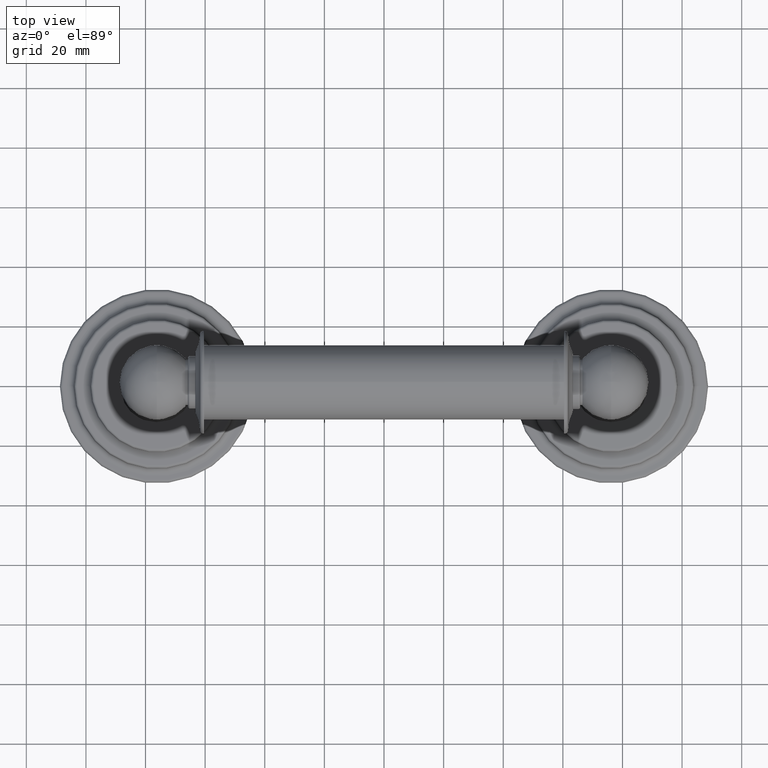
[diagram: clean part render]
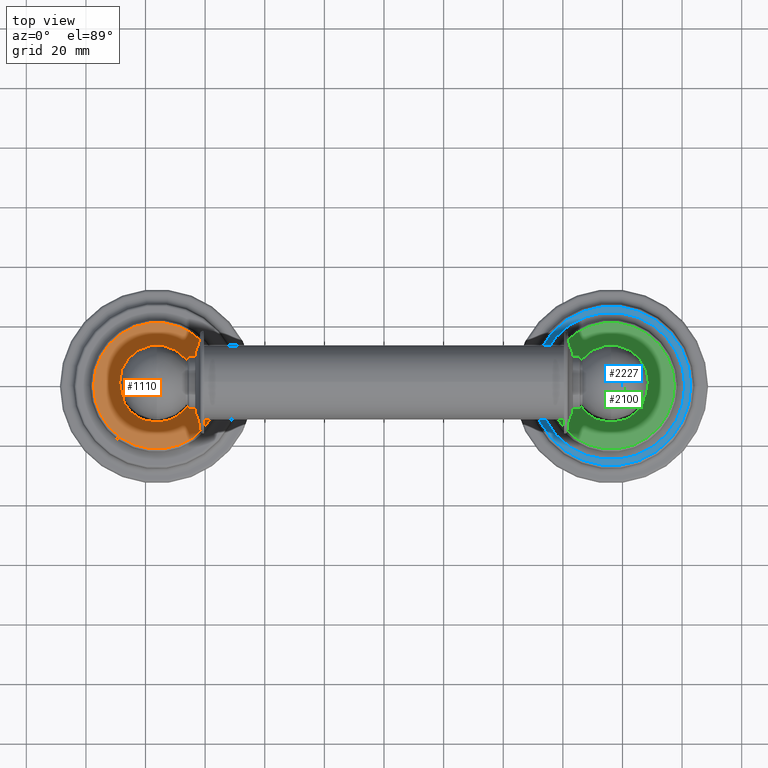
[diagram: same view with three faces highlighted in distinct colors, each labeled with its STEP entity id]
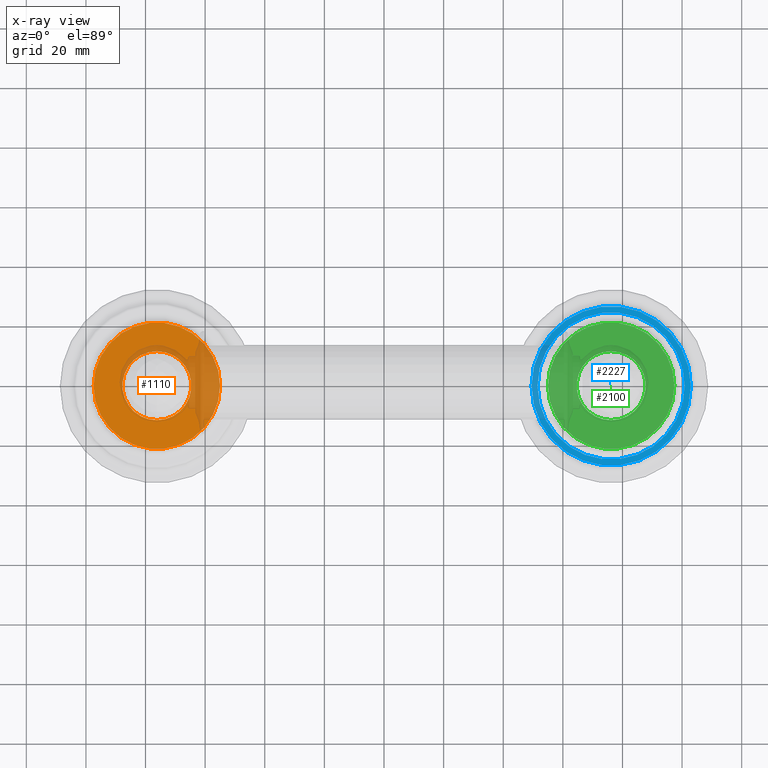
[diagram: x-ray of the same camera — body ghosted, the three highlighted faces saturated]
A machine part, top view with three faces highlighted in distinct colors.
The next image is the same camera in x-ray (body ghosted, the three faces saturated) — at least one of them is partly hidden behind the body in this view.
Their STEP definitions:

[orange] entity #1110 — the highlighted planar face has unit normal (0, 0, -1).
#401=CARTESIAN_POINT('',(-3.E0,0.E0,5.12E-1));
#402=DIRECTION('',(0.E0,0.E0,1.E0));
#403=DIRECTION('',(1.E0,0.E0,0.E0));
#404=AXIS2_PLACEMENT_3D('',#401,#402,#403);
#409=CARTESIAN_POINT('',(-3.E0,0.E0,5.12E-1));
#410=DIRECTION('',(0.E0,0.E0,1.E0));
#411=DIRECTION('',(-1.E0,0.E0,0.E0));
#412=AXIS2_PLACEMENT_3D('',#409,#410,#411);
#417=CARTESIAN_POINT('',(-3.E0,0.E0,5.12E-1));
#418=DIRECTION('',(0.E0,0.E0,1.E0));
#419=DIRECTION('',(0.E0,-1.E0,0.E0));
#420=AXIS2_PLACEMENT_3D('',#417,#418,#419);
#425=CARTESIAN_POINT('',(-3.E0,0.E0,5.12E-1));
#426=DIRECTION('',(0.E0,0.E0,1.E0));
#427=DIRECTION('',(0.E0,1.E0,0.E0));
#428=AXIS2_PLACEMENT_3D('',#425,#426,#427);
#695=CARTESIAN_POINT('',(-2.165E0,0.E0,5.12E-1));
#696=CARTESIAN_POINT('',(-3.835E0,0.E0,5.12E-1));
#697=VERTEX_POINT('',#695);
#698=VERTEX_POINT('',#696);
#729=CARTESIAN_POINT('',(-3.E0,-4.55E-1,5.12E-1));
#730=CARTESIAN_POINT('',(-3.E0,4.55E-1,5.12E-1));
#731=VERTEX_POINT('',#729);
#732=VERTEX_POINT('',#730);
#1094=CARTESIAN_POINT('',(-3.5E0,1.774594738293E-1,5.12E-1));
#1095=DIRECTION('',(0.E0,0.E0,-1.E0));
#1096=DIRECTION('',(0.E0,1.E0,0.E0));
#1097=AXIS2_PLACEMENT_3D('',#1094,#1095,#1096);
#1098=PLANE('',#1097);
#1099=ORIENTED_EDGE('',*,*,#1077,.F.);
#1101=ORIENTED_EDGE('',*,*,#1100,.F.);
#1102=EDGE_LOOP('',(#1099,#1101));
#1103=FACE_OUTER_BOUND('',#1102,.F.);
#1105=ORIENTED_EDGE('',*,*,#1104,.T.);
#1107=ORIENTED_EDGE('',*,*,#1106,.T.);
#1108=EDGE_LOOP('',(#1105,#1107));
#1109=FACE_BOUND('',#1108,.F.);
#405=CIRCLE('',#404,8.35E-1);
#413=CIRCLE('',#412,8.35E-1);
#421=CIRCLE('',#420,4.55E-1);
#429=CIRCLE('',#428,4.55E-1);
#1077=EDGE_CURVE('',#697,#698,#405,.T.);
#1100=EDGE_CURVE('',#698,#697,#413,.T.);
#1104=EDGE_CURVE('',#731,#732,#421,.T.);
#1106=EDGE_CURVE('',#732,#731,#429,.T.);
#1110=ADVANCED_FACE('',(#1103,#1109),#1098,.F.);

[blue] entity #2227 — the highlighted planar face has unit normal (0, 0, 1).
#1587=CARTESIAN_POINT('',(3.E0,0.E0,3.62E-1));
#1588=DIRECTION('',(0.E0,0.E0,-1.E0));
#1589=DIRECTION('',(1.E0,0.E0,0.E0));
#1590=AXIS2_PLACEMENT_3D('',#1587,#1588,#1589);
#1603=CARTESIAN_POINT('',(3.E0,0.E0,3.62E-1));
#1604=DIRECTION('',(0.E0,0.E0,1.E0));
#1605=DIRECTION('',(1.E0,0.E0,0.E0));
#1606=AXIS2_PLACEMENT_3D('',#1603,#1604,#1605);
#1611=CARTESIAN_POINT('',(3.E0,0.E0,3.62E-1));
#1612=DIRECTION('',(0.E0,0.E0,1.E0));
#1613=DIRECTION('',(1.E0,0.E0,0.E0));
#1614=AXIS2_PLACEMENT_3D('',#1611,#1612,#1613);
#1619=CARTESIAN_POINT('',(3.E0,0.E0,3.62E-1));
#1620=DIRECTION('',(0.E0,0.E0,1.E0));
#1621=DIRECTION('',(-1.E0,0.E0,0.E0));
#1622=AXIS2_PLACEMENT_3D('',#1619,#1620,#1621);
#1991=CARTESIAN_POINT('',(3.972E0,0.E0,3.62E-1));
#1993=VERTEX_POINT('',#1991);
#1999=CARTESIAN_POINT('',(2.028E0,0.E0,3.62E-1));
#2001=VERTEX_POINT('',#1999);
#2015=CARTESIAN_POINT('',(4.052E0,0.E0,3.62E-1));
#2016=CARTESIAN_POINT('',(1.948E0,0.E0,3.62E-1));
#2017=VERTEX_POINT('',#2015);
#2018=VERTEX_POINT('',#2016);
#2212=CARTESIAN_POINT('',(3.E0,0.E0,3.62E-1));
#2213=DIRECTION('',(0.E0,0.E0,1.E0));
#2214=DIRECTION('',(1.E0,0.E0,0.E0));
#2215=AXIS2_PLACEMENT_3D('',#2212,#2213,#2214);
#2216=PLANE('',#2215);
#2218=ORIENTED_EDGE('',*,*,#2217,.F.);
#2220=ORIENTED_EDGE('',*,*,#2219,.F.);
#2221=EDGE_LOOP('',(#2218,#2220));
#2222=FACE_OUTER_BOUND('',#2221,.F.);
#2223=ORIENTED_EDGE('',*,*,#2177,.F.);
#2224=ORIENTED_EDGE('',*,*,#2200,.T.);
#2225=EDGE_LOOP('',(#2223,#2224));
#2226=FACE_BOUND('',#2225,.F.);
#1591=CIRCLE('',#1590,9.72E-1);
#1607=CIRCLE('',#1606,9.72E-1);
#1615=CIRCLE('',#1614,1.052E0);
#1623=CIRCLE('',#1622,1.052E0);
#2177=EDGE_CURVE('',#1993,#2001,#1591,.T.);
#2200=EDGE_CURVE('',#1993,#2001,#1607,.T.);
#2217=EDGE_CURVE('',#2017,#2018,#1615,.T.);
#2219=EDGE_CURVE('',#2018,#2017,#1623,.T.);
#2227=ADVANCED_FACE('',(#2222,#2226),#2216,.T.);

[green] entity #2100 — the highlighted planar face has unit normal (0, 0, 1).
#1493=CARTESIAN_POINT('',(3.E0,0.E0,5.12E-1));
#1494=DIRECTION('',(0.E0,0.E0,1.E0));
#1495=DIRECTION('',(1.E0,0.E0,0.E0));
#1496=AXIS2_PLACEMENT_3D('',#1493,#1494,#1495);
#1501=CARTESIAN_POINT('',(3.E0,0.E0,5.12E-1));
#1502=DIRECTION('',(0.E0,0.E0,1.E0));
#1503=DIRECTION('',(-1.E0,0.E0,0.E0));
#1504=AXIS2_PLACEMENT_3D('',#1501,#1502,#1503);
#1509=CARTESIAN_POINT('',(3.E0,0.E0,5.12E-1));
#1510=DIRECTION('',(0.E0,0.E0,1.E0));
#1511=DIRECTION('',(0.E0,-1.E0,0.E0));
#1512=AXIS2_PLACEMENT_3D('',#1509,#1510,#1511);
#1517=CARTESIAN_POINT('',(3.E0,0.E0,5.12E-1));
#1518=DIRECTION('',(0.E0,0.E0,1.E0));
#1519=DIRECTION('',(0.E0,1.E0,0.E0));
#1520=AXIS2_PLACEMENT_3D('',#1517,#1518,#1519);
#2023=CARTESIAN_POINT('',(3.835E0,0.E0,5.12E-1));
#2024=CARTESIAN_POINT('',(2.165E0,0.E0,5.12E-1));
#2025=VERTEX_POINT('',#2023);
#2026=VERTEX_POINT('',#2024);
#2057=CARTESIAN_POINT('',(3.E0,-4.55E-1,5.12E-1));
#2058=CARTESIAN_POINT('',(3.E0,4.55E-1,5.12E-1));
#2059=VERTEX_POINT('',#2057);
#2060=VERTEX_POINT('',#2058);
#2084=CARTESIAN_POINT('',(3.E0,0.E0,5.12E-1));
#2085=DIRECTION('',(0.E0,0.E0,1.E0));
#2086=DIRECTION('',(1.E0,0.E0,0.E0));
#2087=AXIS2_PLACEMENT_3D('',#2084,#2085,#2086);
#2088=PLANE('',#2087);
#2090=ORIENTED_EDGE('',*,*,#2089,.F.);
#2091=ORIENTED_EDGE('',*,*,#2066,.F.);
#2092=EDGE_LOOP('',(#2090,#2091));
#2093=FACE_OUTER_BOUND('',#2092,.F.);
#2095=ORIENTED_EDGE('',*,*,#2094,.T.);
#2097=ORIENTED_EDGE('',*,*,#2096,.T.);
#2098=EDGE_LOOP('',(#2095,#2097));
#2099=FACE_BOUND('',#2098,.F.);
#1497=CIRCLE('',#1496,8.35E-1);
#1505=CIRCLE('',#1504,8.35E-1);
#1513=CIRCLE('',#1512,4.55E-1);
#1521=CIRCLE('',#1520,4.55E-1);
#2066=EDGE_CURVE('',#2026,#2025,#1505,.T.);
#2089=EDGE_CURVE('',#2025,#2026,#1497,.T.);
#2094=EDGE_CURVE('',#2059,#2060,#1513,.T.);
#2096=EDGE_CURVE('',#2060,#2059,#1521,.T.);
#2100=ADVANCED_FACE('',(#2093,#2099),#2088,.T.);